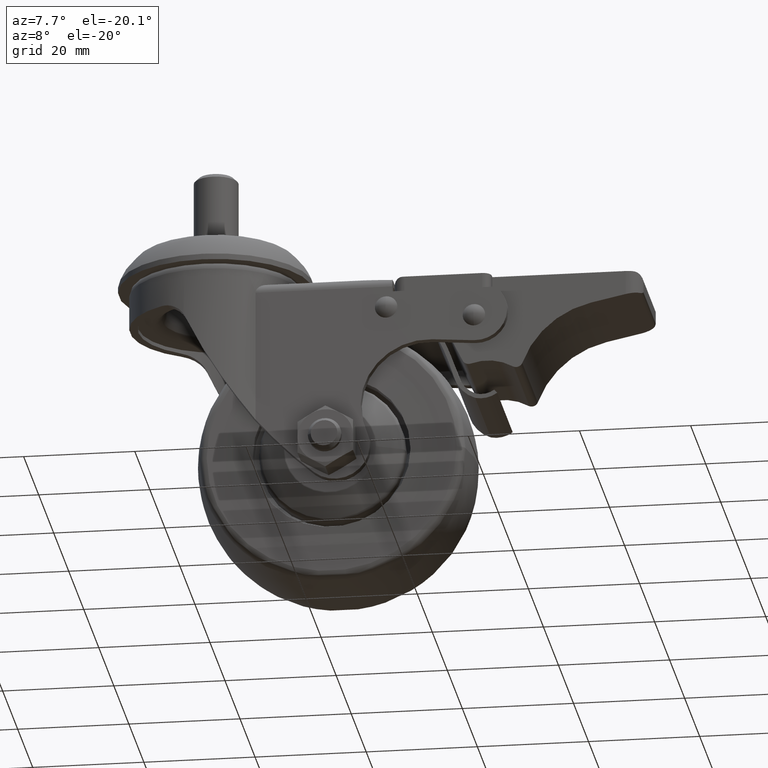
[diagram: clean part render]
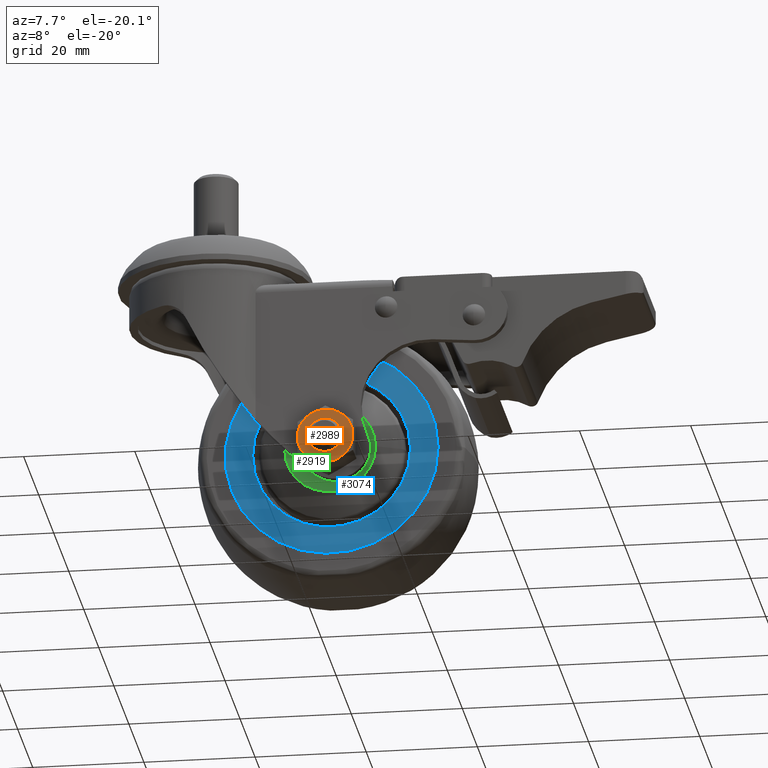
[diagram: same view with three faces highlighted in distinct colors, each labeled with its STEP entity id]
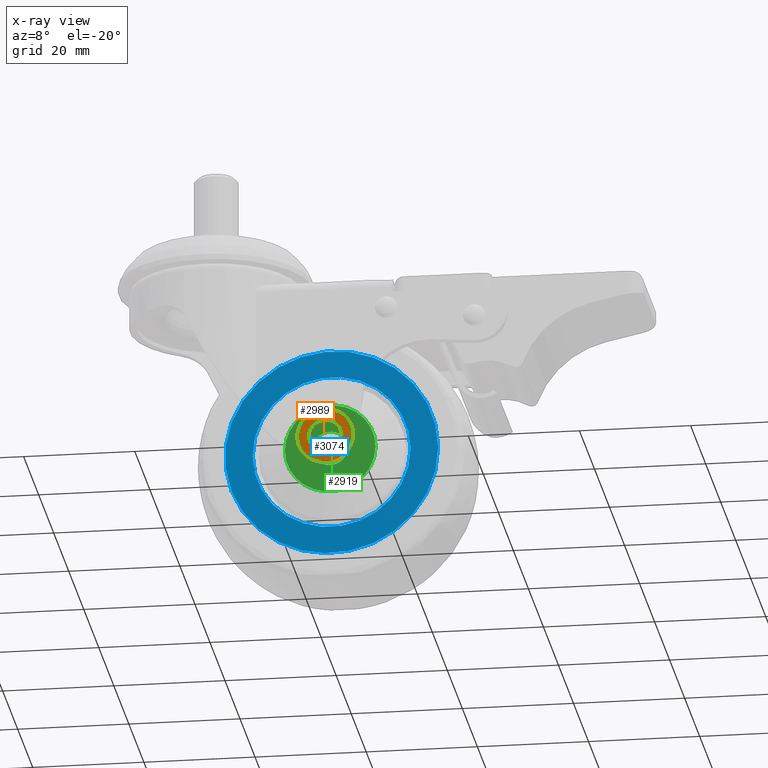
[diagram: x-ray of the same camera — body ghosted, the three highlighted faces saturated]
A machine part, auxiliary view with three faces highlighted in distinct colors.
The next image is the same camera in x-ray (body ghosted, the three faces saturated) — at least one of them is partly hidden behind the body in this view.
Their STEP definitions:

[orange] entity #2989 — the highlighted planar face has unit normal (-0.0001, 1, 0).
#531=FACE_BOUND('',#923,.T.);
#591=PLANE('',#3494);
#723=FACE_OUTER_BOUND('',#922,.T.);
#922=EDGE_LOOP('',(#2430,#2431,#2432,#2433,#2434,#2435));
#923=EDGE_LOOP('',(#2436));
#1120=CIRCLE('',#3479,5.);
#1121=CIRCLE('',#3481,5.);
#1122=CIRCLE('',#3483,5.);
#1123=CIRCLE('',#3485,5.);
#1124=CIRCLE('',#3487,5.);
#1127=CIRCLE('',#3493,5.);
#1128=CIRCLE('',#3495,3.);
#1422=VERTEX_POINT('',#5275);
#1424=VERTEX_POINT('',#5280);
#1425=VERTEX_POINT('',#5286);
#1427=VERTEX_POINT('',#5296);
#1429=VERTEX_POINT('',#5306);
#1431=VERTEX_POINT('',#5316);
#1436=VERTEX_POINT('',#5347);
#1774=EDGE_CURVE('',#1422,#1424,#1120,.T.);
#1775=EDGE_CURVE('',#1424,#1425,#1121,.T.);
#1778=EDGE_CURVE('',#1425,#1427,#1122,.T.);
#1783=EDGE_CURVE('',#1429,#1422,#1123,.T.);
#1784=EDGE_CURVE('',#1427,#1431,#1124,.T.);
#1793=EDGE_CURVE('',#1431,#1429,#1127,.T.);
#1794=EDGE_CURVE('',#1436,#1436,#1128,.T.);
#2430=ORIENTED_EDGE('',*,*,#1774,.T.);
#2431=ORIENTED_EDGE('',*,*,#1775,.T.);
#2432=ORIENTED_EDGE('',*,*,#1778,.T.);
#2433=ORIENTED_EDGE('',*,*,#1784,.T.);
#2434=ORIENTED_EDGE('',*,*,#1793,.T.);
#2435=ORIENTED_EDGE('',*,*,#1783,.T.);
#2436=ORIENTED_EDGE('',*,*,#1794,.F.);
#2989=ADVANCED_FACE('',(#723,#531),#591,.F.);
#3479=AXIS2_PLACEMENT_3D('',#5284,#4157,#4158);
#3481=AXIS2_PLACEMENT_3D('',#5287,#4161,#4162);
#3483=AXIS2_PLACEMENT_3D('',#5297,#4165,#4166);
#3485=AXIS2_PLACEMENT_3D('',#5314,#4169,#4170);
#3487=AXIS2_PLACEMENT_3D('',#5317,#4173,#4174);
#3493=AXIS2_PLACEMENT_3D('',#5345,#4185,#4186);
#3494=AXIS2_PLACEMENT_3D('',#5346,#4187,#4188);
#3495=AXIS2_PLACEMENT_3D('',#5348,#4189,#4190);
#4157=DIRECTION('center_axis',(1.,0.,0.));
#4158=DIRECTION('ref_axis',(0.,0.,-1.));
#4161=DIRECTION('center_axis',(1.,0.,0.));
#4162=DIRECTION('ref_axis',(0.,0.,-1.));
#4165=DIRECTION('center_axis',(1.,0.,0.));
#4166=DIRECTION('ref_axis',(0.,0.,-1.));
#4169=DIRECTION('center_axis',(1.,0.,0.));
#4170=DIRECTION('ref_axis',(0.,0.,-1.));
#4173=DIRECTION('center_axis',(1.,0.,0.));
#4174=DIRECTION('ref_axis',(0.,0.,-1.));
#4185=DIRECTION('center_axis',(1.,0.,0.));
#4186=DIRECTION('ref_axis',(0.,0.,-1.));
#4187=DIRECTION('center_axis',(-1.,0.,0.));
#4188=DIRECTION('ref_axis',(0.,0.,1.));
#4189=DIRECTION('center_axis',(1.,0.,0.));
#4190=DIRECTION('ref_axis',(0.,0.,-1.));
#5275=CARTESIAN_POINT('',(5.,0.,-5.));
#5280=CARTESIAN_POINT('',(5.,4.33012701892219,-2.5));
#5284=CARTESIAN_POINT('Origin',(5.,0.,0.));
#5286=CARTESIAN_POINT('',(5.,4.33012701892219,2.5));
#5287=CARTESIAN_POINT('Origin',(5.,0.,0.));
#5296=CARTESIAN_POINT('',(5.,0.,5.));
#5297=CARTESIAN_POINT('Origin',(5.,0.,0.));
#5306=CARTESIAN_POINT('',(5.,-4.33012701892219,-2.5));
#5314=CARTESIAN_POINT('Origin',(5.,0.,0.));
#5316=CARTESIAN_POINT('',(5.,-4.33012701892219,2.5));
#5317=CARTESIAN_POINT('Origin',(5.,0.,0.));
#5345=CARTESIAN_POINT('Origin',(5.,0.,0.));
#5346=CARTESIAN_POINT('Origin',(5.,5.,0.));
#5347=CARTESIAN_POINT('',(5.,-3.67394039744206E-16,3.));
#5348=CARTESIAN_POINT('Origin',(5.,0.,0.));

[blue] entity #3074 — the highlighted conical surface has half-angle 88.843 deg.
#300=LINE('',#5896,#461);
#461=VECTOR('',#4634,19.1499999999996);
#808=FACE_OUTER_BOUND('',#1030,.T.);
#1030=EDGE_LOOP('',(#2829,#2830,#2831,#2832));
#1228=CIRCLE('',#3681,19.1499999999996);
#1229=CIRCLE('',#3683,14.1999999999998);
#1552=VERTEX_POINT('',#5892);
#1553=VERTEX_POINT('',#5895);
#1978=EDGE_CURVE('',#1552,#1552,#1228,.T.);
#1979=EDGE_CURVE('',#1552,#1553,#300,.T.);
#1980=EDGE_CURVE('',#1553,#1553,#1229,.T.);
#2829=ORIENTED_EDGE('',*,*,#1978,.F.);
#2830=ORIENTED_EDGE('',*,*,#1979,.T.);
#2831=ORIENTED_EDGE('',*,*,#1980,.T.);
#2832=ORIENTED_EDGE('',*,*,#1979,.F.);
#2889=CONICAL_SURFACE('',#3682,19.1499999999996,1.5505970542138);
#3074=ADVANCED_FACE('',(#808),#2889,.T.);
#3681=AXIS2_PLACEMENT_3D('',#5893,#4630,#4631);
#3682=AXIS2_PLACEMENT_3D('',#5894,#4632,#4633);
#3683=AXIS2_PLACEMENT_3D('',#5897,#4635,#4636);
#4630=DIRECTION('center_axis',(1.,0.,0.));
#4631=DIRECTION('ref_axis',(0.,0.,-1.));
#4632=DIRECTION('center_axis',(1.,0.,0.));
#4633=DIRECTION('ref_axis',(0.,0.,-1.));
#4634=DIRECTION('',(-0.0201978990228543,1.22439697319633E-16,-0.999796001629864));
#4635=DIRECTION('center_axis',(1.,0.,0.));
#4636=DIRECTION('ref_axis',(0.,0.,-1.));
#5892=CARTESIAN_POINT('',(1.5,-2.34519862036713E-15,19.1499999999996));
#5893=CARTESIAN_POINT('Origin',(1.5,0.,0.));
#5894=CARTESIAN_POINT('Origin',(1.5,0.,0.));
#5895=CARTESIAN_POINT('',(1.39999999999986,-1.73899845478922E-15,14.1999999999998));
#5896=CARTESIAN_POINT('',(1.5,-2.34519862036713E-15,19.1499999999996));
#5897=CARTESIAN_POINT('Origin',(1.39999999999986,0.,0.));

[green] entity #2919 — the highlighted planar face has unit normal (0.0001, -1, -0).
#525=FACE_BOUND('',#847,.T.);
#566=PLANE('',#3351);
#653=FACE_OUTER_BOUND('',#846,.T.);
#846=EDGE_LOOP('',(#2103));
#847=EDGE_LOOP('',(#2104));
#1060=CIRCLE('',#3352,8.16915266867853);
#1061=CIRCLE('',#3353,3.15);
#1319=VERTEX_POINT('',#4852);
#1320=VERTEX_POINT('',#4854);
#1615=EDGE_CURVE('',#1319,#1319,#1060,.T.);
#1616=EDGE_CURVE('',#1320,#1320,#1061,.T.);
#2103=ORIENTED_EDGE('',*,*,#1615,.F.);
#2104=ORIENTED_EDGE('',*,*,#1616,.T.);
#2919=ADVANCED_FACE('',(#653,#525),#566,.T.);
#3351=AXIS2_PLACEMENT_3D('',#4851,#3822,#3823);
#3352=AXIS2_PLACEMENT_3D('',#4853,#3824,#3825);
#3353=AXIS2_PLACEMENT_3D('',#4855,#3826,#3827);
#3822=DIRECTION('center_axis',(-1.,0.,0.));
#3823=DIRECTION('ref_axis',(0.,0.,1.));
#3824=DIRECTION('center_axis',(1.,0.,0.));
#3825=DIRECTION('ref_axis',(0.,0.,-1.));
#3826=DIRECTION('center_axis',(1.,0.,0.));
#3827=DIRECTION('ref_axis',(0.,0.,-1.));
#4851=CARTESIAN_POINT('Origin',(2.71050543121376E-16,8.16915266867853,0.));
#4852=CARTESIAN_POINT('',(5.55111512312578E-16,-1.00043266674432E-15,8.16915266867853));
#4853=CARTESIAN_POINT('Origin',(5.42101086242752E-16,0.,0.));
#4854=CARTESIAN_POINT('',(-6.93889390390723E-17,-3.85763741731416E-16,3.15));
#4855=CARTESIAN_POINT('Origin',(0.,0.,0.));